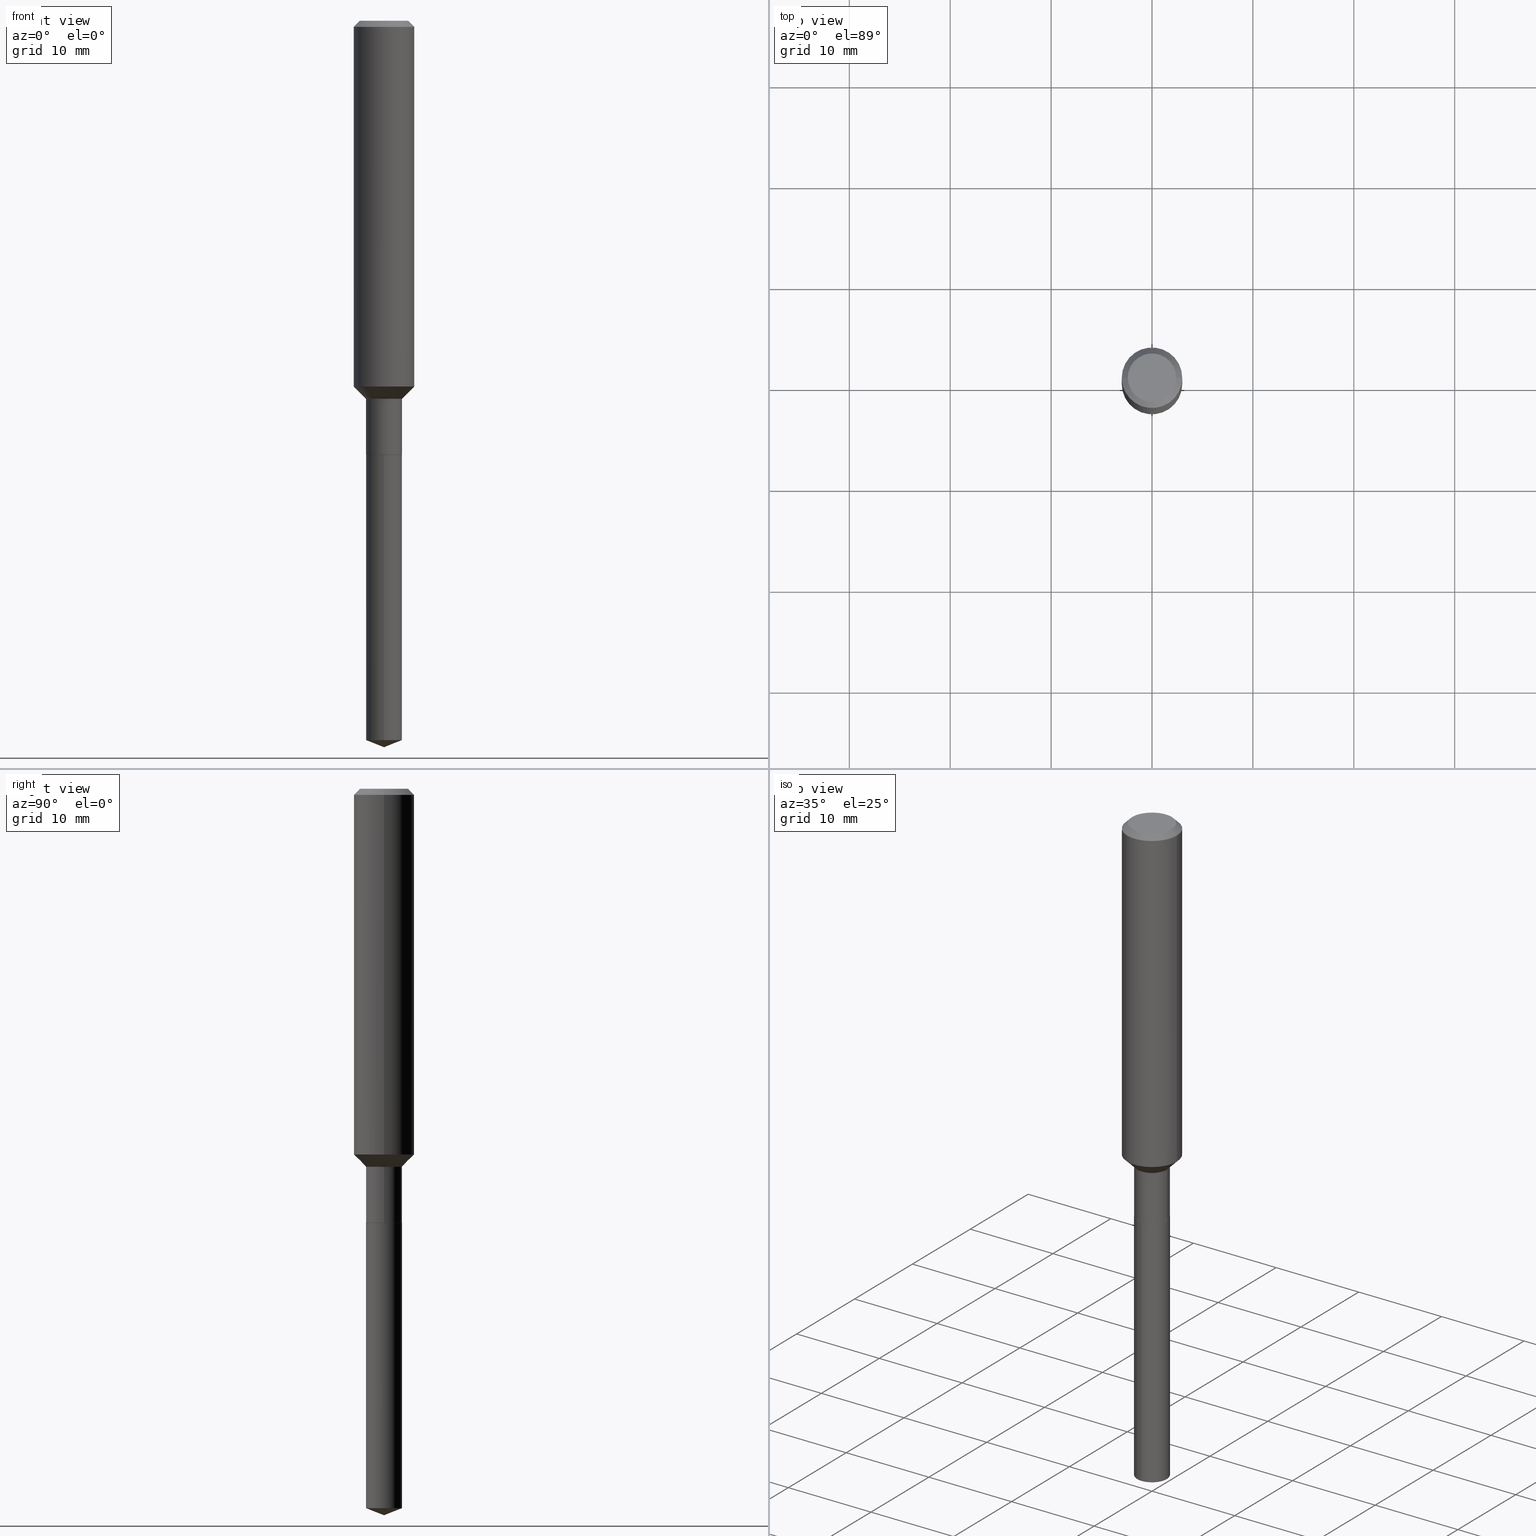
[diagram: canonical four-view strip — front | top / right | iso, engineering-drawing reading convention]
A machine part, canonical four-view strip (front | top / right | iso — engineering-drawing reading convention). The complete STEP part file that produces these views, byte-faithful:
ISO-10303-21;
HEADER;
FILE_DESCRIPTION (( 'STEP AP203' ),
    '1' );
FILE_NAME ('56474.STEP',
    '2024-04-24T18:12:00',
    ( '' ),
    ( '' ),
    'SwSTEP 2.0',
    'SolidWorks 2023',
    '' );
FILE_SCHEMA (( 'CONFIG_CONTROL_DESIGN' ));
ENDSEC;

DATA;
#1 = ORIENTED_EDGE ( 'NONE', *, *, #483, .T. ) ;
#2 = FACE_OUTER_BOUND ( 'NONE', #259, .T. ) ;
#3 = VERTEX_POINT ( 'NONE', #260 ) ;
#4 = DIRECTION ( 'NONE',  ( 1.000000000000000000, -6.982962677686266711E-15, 4.876176775795935232E-29 ) ) ;
#5 = AXIS2_PLACEMENT_3D ( 'NONE', #252, #402, #288 ) ;
#6 = EDGE_CURVE ( 'NONE', #32, #282, #364, .T. ) ;
#7 = PERSON_AND_ORGANIZATION ( #243, #291 ) ;
#8 = LINE ( 'NONE', #341, #345 ) ;
#9 = DATE_AND_TIME ( #348, #39 ) ;
#10 = APPROVAL ( #164, 'UNSPECIFIED' ) ;
#11 = CARTESIAN_POINT ( 'NONE',  ( 3.606821942242457808E-29, -5.149585826659755542E-15, -1.474899999999999878 ) ) ;
#12 = PERSON_AND_ORGANIZATION_ROLE ( 'classification_officer' ) ;
#13 = LINE ( 'NONE', #464, #308 ) ;
#14 = APPROVAL_PERSON_ORGANIZATION ( #239, #10, #419 ) ;
#15 = CIRCLE ( 'NONE', #211, 0.09447999999999998066 ) ;
#16 = DIRECTION ( 'NONE',  ( -2.445468806185136877E-29, 3.491481338843145188E-15, 1.000000000000000000 ) ) ;
#17 = FACE_OUTER_BOUND ( 'NONE', #303, .T. ) ;
#18 = ORIENTED_EDGE ( 'NONE', *, *, #66, .F. ) ;
#19 = UNCERTAINTY_MEASURE_WITH_UNIT (LENGTH_MEASURE( 1.000000000000000082E-05 ), #327, 'distance_accuracy_value', 'NONE');
#20 = CARTESIAN_POINT ( 'NONE',  ( 0.09447999999999998066, -7.704367267948738690E-16, -2.700101262759583929E-17 ) ) ;
#21 = ORIENTED_EDGE ( 'NONE', *, *, #84, .T. ) ;
#22 = VECTOR ( 'NONE', #85, 39.37007874015748143 ) ;
#23 = DIRECTION ( 'NONE',  ( 0.7071067811866199593, -2.468850131083015945E-15, 0.7071067811864750752 ) ) ;
#24 = LINE ( 'NONE', #321, #53 ) ;
#25 = CC_DESIGN_PERSON_AND_ORGANIZATION_ASSIGNMENT ( #201, #12, ( #270 ) ) ;
#26 = DIRECTION ( 'NONE',  ( -6.982962677686265133E-15, -1.000000000000000000, 3.885985766236505386E-15 ) ) ;
#27 = ORIENTED_EDGE ( 'NONE', *, *, #369, .F. ) ;
#28 = APPLICATION_PROTOCOL_DEFINITION ( 'international standard', 'config_control_design', 1994, #480 ) ;
#29 = DIRECTION ( 'NONE',  ( -2.445468806185136597E-29, 3.491481338843145583E-15, 1.000000000000000000 ) ) ;
#30 = DIRECTION ( 'NONE',  ( 0.000000000000000000, 0.000000000000000000, 1.000000000000000000 ) ) ;
#31 = ADVANCED_FACE ( 'NONE', ( #447 ), #134, .T. ) ;
#32 = VERTEX_POINT ( 'NONE', #150 ) ;
#33 = ORIENTED_EDGE ( 'NONE', *, *, #483, .F. ) ;
#34 =( LENGTH_UNIT ( ) NAMED_UNIT ( * ) SI_UNIT ( $, .METRE. ) );
#35 = EDGE_LOOP ( 'NONE', ( #233, #292, #333, #33 ) ) ;
#36 = ADVANCED_FACE ( 'NONE', ( #445 ), #444, .T. ) ;
#37 = DIRECTION ( 'NONE',  ( -2.445468806185136597E-29, 3.491481338843145583E-15, 1.000000000000000000 ) ) ;
#38 = VERTEX_POINT ( 'NONE', #411 ) ;
#39 = LOCAL_TIME ( 14, 12, 0.000000000000000000, #350 ) ;
#40 = DIRECTION ( 'NONE',  ( 1.000000000000000000, -6.982962677686266711E-15, 4.876176775795936353E-29 ) ) ;
#41 = ORIENTED_EDGE ( 'NONE', *, *, #488, .T. ) ;
#42 = DIRECTION ( 'NONE',  ( -2.445468806185136597E-29, 3.491481338843145583E-15, 1.000000000000000000 ) ) ;
#43 = EDGE_CURVE ( 'NONE', #142, #373, #158, .T. ) ;
#44 = PERSON_AND_ORGANIZATION ( #243, #291 ) ;
#45 = DIRECTION ( 'NONE',  ( -0.7071067811866199593, 7.493145998870616062E-15, 0.7071067811864750752 ) ) ;
#46 = CIRCLE ( 'NONE', #106, 0.1181000000000001632 ) ;
#47 = AXIS2_PLACEMENT_3D ( 'NONE', #405, #72, #147 ) ;
#48 = DIRECTION ( 'NONE',  ( -6.982962677686266711E-15, -1.000000000000000000, 3.885985766236505386E-15 ) ) ;
#49 = CC_DESIGN_PERSON_AND_ORGANIZATION_ASSIGNMENT ( #195, #50, ( #251 ) ) ;
#50 = PERSON_AND_ORGANIZATION_ROLE ( 'creator' ) ;
#51 = CARTESIAN_POINT ( 'NONE',  ( -4.909022762413031377E-16, -0.07030000000000589944, -1.692899999999999627 ) ) ;
#52 = DIRECTION ( 'NONE',  ( 6.611014441532066589E-15, 0.9304175679820272382, 0.3665012267242905297 ) ) ;
#53 = VECTOR ( 'NONE', #23, 39.37007874015748143 ) ;
#54 =( GEOMETRIC_REPRESENTATION_CONTEXT ( 3 ) GLOBAL_UNCERTAINTY_ASSIGNED_CONTEXT ( ( #19 ) ) GLOBAL_UNIT_ASSIGNED_CONTEXT ( ( #327, #112, #183 ) ) REPRESENTATION_CONTEXT ( 'NONE', 'WORKASPACE' ) );
#55 = DIRECTION ( 'NONE',  ( 1.000000000000000000, -6.982962677686265922E-15, 4.876176775795935793E-29 ) ) ;
#56 = VERTEX_POINT ( 'NONE', #448 ) ;
#57 = DIRECTION ( 'NONE',  ( -2.445468806185136597E-29, 3.491481338843145583E-15, 1.000000000000000000 ) ) ;
#58 = ADVANCED_FACE ( 'NONE', ( #109 ), #381, .T. ) ;
#59 = ORIENTED_EDGE ( 'NONE', *, *, #383, .T. ) ;
#60 = LINE ( 'NONE', #392, #92 ) ;
#61 = DIRECTION ( 'NONE',  ( 1.000000000000000000, -6.982962677686267499E-15, 4.875432709231658792E-29 ) ) ;
#62 = DIRECTION ( 'NONE',  ( 0.7071067811865459074, -7.319954787623249734E-15, -0.7071067811865491270 ) ) ;
#63 = CARTESIAN_POINT ( 'NONE',  ( 0.000000000000000000, 0.000000000000000000, 0.000000000000000000 ) ) ;
#64 = EDGE_LOOP ( 'NONE', ( #339, #1 ) ) ;
#65 = ORIENTED_EDGE ( 'NONE', *, *, #451, .T. ) ;
#66 = EDGE_CURVE ( 'NONE', #56, #373, #346, .T. ) ;
#67 = CLOSED_SHELL ( 'NONE', ( #219, #36, #389, #170, #131 ) ) ;
#68 = VECTOR ( 'NONE', #88, 39.37007874015748143 ) ;
#69 = LINE ( 'NONE', #302, #404 ) ;
#70 = AXIS2_PLACEMENT_3D ( 'NONE', #388, #193, #48 ) ;
#71 = ORIENTED_EDGE ( 'NONE', *, *, #238, .T. ) ;
#72 = DIRECTION ( 'NONE',  ( -2.445468806185136597E-29, 3.491481338843145583E-15, 1.000000000000000000 ) ) ;
#73 = EDGE_LOOP ( 'NONE', ( #481, #41, #263, #398 ) ) ;
#74 = DIRECTION ( 'NONE',  ( -2.436575684604276326E-29, 3.504216795111983695E-15, 1.000000000000000000 ) ) ;
#75 = ORIENTED_EDGE ( 'NONE', *, *, #446, .T. ) ;
#76 = DATE_AND_TIME ( #314, #289 ) ;
#77 = ORIENTED_EDGE ( 'NONE', *, *, #322, .F. ) ;
#78 = VECTOR ( 'NONE', #16, 39.37007874015748143 ) ;
#79 = DIRECTION ( 'NONE',  ( -6.982962677686266711E-15, -1.000000000000000000, 3.885985766236505386E-15 ) ) ;
#80 = COORDINATED_UNIVERSAL_TIME_OFFSET ( 5, 0, .BEHIND. ) ;
#81 = CARTESIAN_POINT ( 'NONE',  ( 0.07030000000000000138, -6.399885294099483730E-15, -1.692399999999999904 ) ) ;
#82 = EDGE_LOOP ( 'NONE', ( #246, #75, #316, #378 ) ) ;
#83 = PRODUCT_RELATED_PRODUCT_CATEGORY ( 'detail', '', ( #155 ) ) ;
#84 = EDGE_CURVE ( 'NONE', #282, #455, #241, .T. ) ;
#85 = DIRECTION ( 'NONE',  ( -2.445468806185136877E-29, 3.491481338843145188E-15, 1.000000000000000000 ) ) ;
#86 = CONICAL_SURFACE ( 'NONE', #317, 0.07029999999999997362, 0.7853981633974507215 ) ;
#87 = PERSON_AND_ORGANIZATION_ROLE ( 'design_owner' ) ;
#88 = DIRECTION ( 'NONE',  ( 0.7071067811865492381, -2.468850131082275204E-15, 0.7071067811865457964 ) ) ;
#89 = CARTESIAN_POINT ( 'NONE',  ( 0.000000000000000000, 0.000000000000000000, 0.000000000000000000 ) ) ;
#90 = DIRECTION ( 'NONE',  ( -2.436575684604276326E-29, 3.504216795111983695E-15, 1.000000000000000000 ) ) ;
#91 = CLOSED_SHELL ( 'NONE', ( #31, #440, #212, #111, #58, #285, #461, #397, #180, #296, #286, #225 ) ) ;
#92 = VECTOR ( 'NONE', #52, 39.37007874015748143 ) ;
#93 = CARTESIAN_POINT ( 'NONE',  ( 6.603013411620882309E-46, -9.427353171913646324E-32, -2.700101262760083747E-17 ) ) ;
#94 = EDGE_CURVE ( 'NONE', #427, #32, #8, .T. ) ;
#95 = CARTESIAN_POINT ( 'NONE',  ( 4.139934141990817236E-29, -5.910728758527560286E-15, -1.692899999999999849 ) ) ;
#96 = CARTESIAN_POINT ( 'NONE',  ( 4.139934141990817236E-29, -5.910728758527560286E-15, -1.692899999999999849 ) ) ;
#97 = LOCAL_TIME ( 14, 12, 0.000000000000000000, #458 ) ;
#98 = AXIS2_PLACEMENT_3D ( 'NONE', #197, #343, #306 ) ;
#99 = CC_DESIGN_SECURITY_CLASSIFICATION ( #270, ( #205 ) ) ;
#100 = CARTESIAN_POINT ( 'NONE',  ( 0.07029999999999997362, -5.640488102901099701E-15, -1.474899999999999878 ) ) ;
#101 = CC_DESIGN_PERSON_AND_ORGANIZATION_ASSIGNMENT ( #433, #311, ( #205 ) ) ;
#102 = CARTESIAN_POINT ( 'NONE',  ( -8.900640395811996230E-28, 1.280497980726341905E-13, 36.53547874015747965 ) ) ;
#103 = DIMENSIONAL_EXPONENTS ( 1.000000000000000000, 0.000000000000000000, 0.000000000000000000, 0.000000000000000000, 0.000000000000000000, 0.000000000000000000, 0.000000000000000000 ) ;
#104 = LENGTH_MEASURE_WITH_UNIT ( LENGTH_MEASURE( 0.02539999999999999897 ), #34 );
#105 = DIRECTION ( 'NONE',  ( -6.982962677686266711E-15, -1.000000000000000000, 0.000000000000000000 ) ) ;
#106 = AXIS2_PLACEMENT_3D ( 'NONE', #442, #130, #254 ) ;
#107 = DIRECTION ( 'NONE',  ( -2.445468806185136597E-29, 3.491481338843145583E-15, 1.000000000000000000 ) ) ;
#108 = EDGE_CURVE ( 'NONE', #56, #393, #240, .T. ) ;
#109 = FACE_OUTER_BOUND ( 'NONE', #113, .T. ) ;
#110 = EDGE_LOOP ( 'NONE', ( #366, #265, #490, #305 ) ) ;
#111 = ADVANCED_FACE ( 'NONE', ( #310 ), #479, .T. ) ;
#112 =( NAMED_UNIT ( * ) PLANE_ANGLE_UNIT ( ) SI_UNIT ( $, .RADIAN. ) );
#113 = EDGE_LOOP ( 'NONE', ( #278, #65, #133, #184 ) ) ;
#114 = APPROVAL_ROLE ( '' ) ;
#115 = VERTEX_POINT ( 'NONE', #315 ) ;
#116 = DATE_TIME_ROLE ( 'creation_date' ) ;
#117 = CARTESIAN_POINT ( 'NONE',  ( 4.995115432393917570E-16, 0.07029999999999410332, -1.692900000000000071 ) ) ;
#118 = AXIS2_PLACEMENT_3D ( 'NONE', #436, #377, #40 ) ;
#119 = AXIS2_PLACEMENT_3D ( 'NONE', #304, #258, #224 ) ;
#120 = CARTESIAN_POINT ( 'NONE',  ( 4.139934141990817236E-29, -5.910728758527560286E-15, -1.692899999999999849 ) ) ;
#121 = EDGE_CURVE ( 'NONE', #418, #115, #273, .T. ) ;
#122 = APPROVAL_STATUS ( 'not_yet_approved' ) ;
#123 = LINE ( 'NONE', #275, #231 ) ;
#124 = ORIENTED_EDGE ( 'NONE', *, *, #307, .F. ) ;
#125 = DIRECTION ( 'NONE',  ( -0.7071067811865459074, 2.468850131082240100E-15, -0.7071067811865491270 ) ) ;
#126 = ORIENTED_EDGE ( 'NONE', *, *, #146, .F. ) ;
#127 = AXIS2_PLACEMENT_3D ( 'NONE', #368, #29, #179 ) ;
#128 = CC_DESIGN_APPROVAL ( #473, ( #205 ) ) ;
#129 = CARTESIAN_POINT ( 'NONE',  ( 0.1181000000000000799, -8.246878922347486570E-16, 5.758764772215004644E-30 ) ) ;
#130 = DIRECTION ( 'NONE',  ( -2.445468806185136597E-29, 3.491481338843145583E-15, 1.000000000000000000 ) ) ;
#131 = ADVANCED_FACE ( 'NONE', ( #434 ), #426, .F. ) ;
#132 = FACE_OUTER_BOUND ( 'NONE', #110, .T. ) ;
#133 = ORIENTED_EDGE ( 'NONE', *, *, #401, .F. ) ;
#134 = CONICAL_SURFACE ( 'NONE', #365, 0.06980000000000000093, 0.7853981633975507526 ) ;
#135 = AXIS2_PLACEMENT_3D ( 'NONE', #320, #358, #203 ) ;
#136 = ORIENTED_EDGE ( 'NONE', *, *, #94, .F. ) ;
#137 = CARTESIAN_POINT ( 'NONE',  ( 6.603013411620882309E-46, -9.427353171913646324E-32, -2.700101262760083747E-17 ) ) ;
#138 = APPROVAL ( #122, 'UNSPECIFIED' ) ;
#139 = DIRECTION ( 'NONE',  ( 1.000000000000000000, -6.982962677686266711E-15, 0.000000000000000000 ) ) ;
#140 = DIRECTION ( 'NONE',  ( -2.445468806185136597E-29, 3.491481338843145583E-15, 1.000000000000000000 ) ) ;
#141 = ORIENTED_EDGE ( 'NONE', *, *, #369, .T. ) ;
#142 = VERTEX_POINT ( 'NONE', #81 ) ;
#143 = EDGE_CURVE ( 'NONE', #3, #38, #123, .T. ) ;
#144 = DIRECTION ( 'NONE',  ( 1.000000000000000000, -6.982962677686268288E-15, 0.000000000000000000 ) ) ;
#145 = ORIENTED_EDGE ( 'NONE', *, *, #383, .F. ) ;
#146 = EDGE_CURVE ( 'NONE', #115, #215, #429, .T. ) ;
#147 = DIRECTION ( 'NONE',  ( 1.000000000000000000, -6.982962677686266711E-15, 4.876176775795936353E-29 ) ) ;
#148 = ORIENTED_EDGE ( 'NONE', *, *, #94, .T. ) ;
#149 = ORIENTED_EDGE ( 'NONE', *, *, #6, .F. ) ;
#150 = CARTESIAN_POINT ( 'NONE',  ( -4.909022762412758234E-16, -0.07030000000000981297, -2.806908093564269624 ) ) ;
#151 = EDGE_LOOP ( 'NONE', ( #182, #59, #189, #250 ) ) ;
#152 = FACE_OUTER_BOUND ( 'NONE', #82, .T. ) ;
#153 = ORIENTED_EDGE ( 'NONE', *, *, #488, .F. ) ;
#154 = CARTESIAN_POINT ( 'NONE',  ( 3.606821942242457808E-29, -5.149585826659755542E-15, -1.474899999999999878 ) ) ;
#155 = PRODUCT ( '56474', '56474', '', ( #297 ) ) ;
#156 = AXIS2_PLACEMENT_3D ( 'NONE', #371, #295, #105 ) ;
#157 = DIRECTION ( 'NONE',  ( -6.497071151882120625E-15, -0.9304175679820246847, 0.3665012267242971356 ) ) ;
#158 = CIRCLE ( 'NONE', #127, 0.07030000000000000138 ) ;
#159 = CC_DESIGN_DATE_AND_TIME_ASSIGNMENT ( #454, #116, ( #251 ) ) ;
#160 = SECURITY_CLASSIFICATION_LEVEL ( 'unclassified' ) ;
#161 = DIRECTION ( 'NONE',  ( 1.000000000000000000, -6.982962677686271444E-15, 0.000000000000000000 ) ) ;
#162 = APPROVAL_DATE_TIME ( #9, #473 ) ;
#163 = DIRECTION ( 'NONE',  ( 1.000000000000000000, -6.982962677686268288E-15, 0.000000000000000000 ) ) ;
#164 = APPROVAL_STATUS ( 'not_yet_approved' ) ;
#165 = FACE_OUTER_BOUND ( 'NONE', #363, .T. ) ;
#166 = PLANE ( 'NONE',  #135 ) ;
#167 = ORIENTED_EDGE ( 'NONE', *, *, #294, .T. ) ;
#168 = DIRECTION ( 'NONE',  ( -6.982962677686265133E-15, -1.000000000000000000, 3.498627837350004222E-15 ) ) ;
#169 = FACE_OUTER_BOUND ( 'NONE', #151, .T. ) ;
#170 = ADVANCED_FACE ( 'NONE', ( #245 ), #236, .T. ) ;
#171 = ADVANCED_BREP_SHAPE_REPRESENTATION ( '56474', ( #394, #242, #422 ), #54 ) ;
#172 = AXIS2_PLACEMENT_3D ( 'NONE', #96, #396, #175 ) ;
#173 = AXIS2_PLACEMENT_3D ( 'NONE', #478, #140, #280 ) ;
#174 = CARTESIAN_POINT ( 'NONE',  ( 4.139934141990817236E-29, -5.910728758527560286E-15, -1.692899999999999849 ) ) ;
#175 = DIRECTION ( 'NONE',  ( 1.000000000000000000, -6.982962677686271444E-15, 0.000000000000000000 ) ) ;
#176 = CARTESIAN_POINT ( 'NONE',  ( 4.139934141990817236E-29, -5.910728758527560286E-15, -1.692899999999999849 ) ) ;
#177 = AXIS2_PLACEMENT_3D ( 'NONE', #284, #469, #139 ) ;
#178 = CARTESIAN_POINT ( 'NONE',  ( 4.995115432394192686E-16, 0.07029999999999410332, -1.692900000000000071 ) ) ;
#179 = DIRECTION ( 'NONE',  ( 1.000000000000000000, -6.982962677686265133E-15, 0.000000000000000000 ) ) ;
#180 = ADVANCED_FACE ( 'NONE', ( #200 ), #300, .T. ) ;
#181 = DIRECTION ( 'NONE',  ( 1.000000000000000000, 0.000000000000000000, 0.000000000000000000 ) ) ;
#182 = ORIENTED_EDGE ( 'NONE', *, *, #451, .F. ) ;
#183 =( NAMED_UNIT ( * ) SI_UNIT ( $, .STERADIAN. ) SOLID_ANGLE_UNIT ( ) );
#184 = ORIENTED_EDGE ( 'NONE', *, *, #199, .F. ) ;
#185 = AXIS2_PLACEMENT_3D ( 'NONE', #489, #484, #144 ) ;
#186 = VECTOR ( 'NONE', #45, 39.37007874015748143 ) ;
#187 = CARTESIAN_POINT ( 'NONE',  ( -0.07029999999999997362, -4.650074283420404904E-15, -1.474899999999999878 ) ) ;
#188 = CIRCLE ( 'NONE', #257, 0.07030000000000000138 ) ;
#189 = ORIENTED_EDGE ( 'NONE', *, *, #199, .T. ) ;
#190 = CARTESIAN_POINT ( 'NONE',  ( 0.1180999999999999966, -9.071566814582237199E-16, -0.02362000000000014435 ) ) ;
#191 = VERTEX_POINT ( 'NONE', #468 ) ;
#192 = DATE_TIME_ROLE ( 'classification_date' ) ;
#193 = DIRECTION ( 'NONE',  ( -2.436575684604276326E-29, 3.504216795111983695E-15, 1.000000000000000000 ) ) ;
#194 = EDGE_CURVE ( 'NONE', #487, #418, #324, .T. ) ;
#195 = PERSON_AND_ORGANIZATION ( #243, #291 ) ;
#196 = CIRCLE ( 'NONE', #177, 0.1180999999999999966 ) ;
#197 = CARTESIAN_POINT ( 'NONE',  ( 4.139934141990817236E-29, -5.910728758527560286E-15, -1.692899999999999849 ) ) ;
#198 = APPROVAL_PERSON_ORGANIZATION ( #274, #473, #276 ) ;
#199 = EDGE_CURVE ( 'NONE', #142, #418, #13, .T. ) ;
#200 = FACE_OUTER_BOUND ( 'NONE', #465, .T. ) ;
#201 = PERSON_AND_ORGANIZATION ( #243, #291 ) ;
#202 = DIRECTION ( 'NONE',  ( 2.445468806185136597E-29, -3.491481338843145583E-15, -1.000000000000000000 ) ) ;
#203 = DIRECTION ( 'NONE',  ( -1.000000000000000000, 6.982962677686265922E-15, -4.876176775795935793E-29 ) ) ;
#204 = AXIS2_PLACEMENT_3D ( 'NONE', #441, #57, #400 ) ;
#205 = PRODUCT_DEFINITION_FORMATION_WITH_SPECIFIED_SOURCE ( 'ANY', '', #155, .NOT_KNOWN. ) ;
#206 = CARTESIAN_POINT ( 'NONE',  ( 4.995115432394188741E-16, 0.07029999999999017590, -2.806908093564269624 ) ) ;
#207 = CC_DESIGN_PERSON_AND_ORGANIZATION_ASSIGNMENT ( #44, #423, ( #205 ) ) ;
#208 = DIRECTION ( 'NONE',  ( 1.000000000000000000, -6.982962677686270655E-15, 0.000000000000000000 ) ) ;
#209 = VERTEX_POINT ( 'NONE', #51 ) ;
#210 = CARTESIAN_POINT ( 'NONE',  ( 4.139934141990817236E-29, -5.910728758527560286E-15, -1.692899999999999849 ) ) ;
#211 = AXIS2_PLACEMENT_3D ( 'NONE', #93, #357, #61 ) ;
#212 = ADVANCED_FACE ( 'NONE', ( #165 ), #318, .T. ) ;
#213 = CYLINDRICAL_SURFACE ( 'NONE', #204, 0.07029999999999998750 ) ;
#214 = CARTESIAN_POINT ( 'NONE',  ( 5.776197320209328408E-31, -8.246878922347560526E-17, -0.02362000000000014435 ) ) ;
#215 = VERTEX_POINT ( 'NONE', #190 ) ;
#216 = ORIENTED_EDGE ( 'NONE', *, *, #66, .T. ) ;
#217 = LINE ( 'NONE', #228, #387 ) ;
#218 = ORIENTED_EDGE ( 'NONE', *, *, #272, .F. ) ;
#219 = ADVANCED_FACE ( 'NONE', ( #2 ), #456, .T. ) ;
#220 = DIRECTION ( 'NONE',  ( -6.982962677686265133E-15, -1.000000000000000000, 3.498627837350004222E-15 ) ) ;
#221 = VECTOR ( 'NONE', #459, 39.37007874015748143 ) ;
#222 = DIRECTION ( 'NONE',  ( -2.445468806185136877E-29, 3.491481338843145188E-15, 1.000000000000000000 ) ) ;
#223 = DIRECTION ( 'NONE',  ( 1.000000000000000000, -6.982962677686271444E-15, 0.000000000000000000 ) ) ;
#224 = DIRECTION ( 'NONE',  ( -1.000000000000000000, 6.982962677686266711E-15, 0.000000000000000000 ) ) ;
#225 = ADVANCED_FACE ( 'NONE', ( #287 ), #344, .T. ) ;
#226 = ORIENTED_EDGE ( 'NONE', *, *, #235, .T. ) ;
#227 = ORIENTED_EDGE ( 'NONE', *, *, #307, .T. ) ;
#228 = CARTESIAN_POINT ( 'NONE',  ( -0.07029999999999998750, 4.995115432393503418E-16, -3.458011368449198169E-30 ) ) ;
#229 = EDGE_LOOP ( 'NONE', ( #136, #336, #149 ) ) ;
#230 = CC_DESIGN_APPROVAL ( #138, ( #251 ) ) ;
#231 = VECTOR ( 'NONE', #125, 39.37007874015748143 ) ;
#232 = CALENDAR_DATE ( 2024, 24, 4 ) ;
#233 = ORIENTED_EDGE ( 'NONE', *, *, #84, .F. ) ;
#234 = APPLICATION_PROTOCOL_DEFINITION ( 'international standard', 'config_control_design', 1994, #379 ) ;
#235 = EDGE_CURVE ( 'NONE', #248, #3, #15, .T. ) ;
#236 = CYLINDRICAL_SURFACE ( 'NONE', #70, 0.07030000000000000138 ) ;
#237 = CARTESIAN_POINT ( 'NONE',  ( 0.07029999999999997362, -5.640488102901099701E-15, -1.474899999999999878 ) ) ;
#238 = EDGE_CURVE ( 'NONE', #191, #38, #281, .T. ) ;
#239 = PERSON_AND_ORGANIZATION ( #243, #291 ) ;
#240 = CIRCLE ( 'NONE', #466, 0.06980000000000000093 ) ;
#241 = LINE ( 'NONE', #117, #221 ) ;
#242 = MANIFOLD_SOLID_BREP ( 'Body-Move/Copy2[2]', #91 ) ;
#243 = PERSON ( 'UNSPECIFIED', 'UNSPECIFIED', 'UNSPECIFIED', ('UNSPECIFIED'), ('UNSPECIFIED'), ('UNSPECIFIED') ) ;
#244 = CALENDAR_DATE ( 2024, 24, 4 ) ;
#245 = FACE_OUTER_BOUND ( 'NONE', #35, .T. ) ;
#246 = ORIENTED_EDGE ( 'NONE', *, *, #235, .F. ) ;
#247 = DIRECTION ( 'NONE',  ( 1.000000000000000000, -6.982962677686271444E-15, 0.000000000000000000 ) ) ;
#248 = VERTEX_POINT ( 'NONE', #20 ) ;
#249 = DIRECTION ( 'NONE',  ( -2.445468806185136597E-29, 3.491481338843145583E-15, 1.000000000000000000 ) ) ;
#250 = ORIENTED_EDGE ( 'NONE', *, *, #194, .F. ) ;
#251 = PRODUCT_DEFINITION ( 'UNKNOWN', '', #205, #470 ) ;
#252 = CARTESIAN_POINT ( 'NONE',  ( 6.854299175221882208E-29, -9.814454629886157032E-15, -2.806908093564269624 ) ) ;
#253 = DIRECTION ( 'NONE',  ( -2.436575684604276326E-29, 3.504216795111983695E-15, 1.000000000000000000 ) ) ;
#254 = DIRECTION ( 'NONE',  ( 1.000000000000000000, -6.982962677686270655E-15, 0.000000000000000000 ) ) ;
#255 = CONICAL_SURFACE ( 'NONE', #432, 99.94676754583997536, 1.195550537616119513 ) ;
#256 = AXIS2_PLACEMENT_3D ( 'NONE', #89, #277, #4 ) ;
#257 = AXIS2_PLACEMENT_3D ( 'NONE', #362, #293, #26 ) ;
#258 = DIRECTION ( 'NONE',  ( 2.445468806185136597E-29, -3.491481338843145583E-15, -1.000000000000000000 ) ) ;
#259 = EDGE_LOOP ( 'NONE', ( #266, #21, #406, #268 ) ) ;
#260 = CARTESIAN_POINT ( 'NONE',  ( -0.09447999999999998066, 7.009847083995354710E-16, -2.700101262760559836E-17 ) ) ;
#261 = AXIS2_PLACEMENT_3D ( 'NONE', #95, #253, #476 ) ;
#262 = EDGE_CURVE ( 'NONE', #282, #32, #352, .T. ) ;
#263 = ORIENTED_EDGE ( 'NONE', *, *, #294, .F. ) ;
#264 = CARTESIAN_POINT ( 'NONE',  ( 0.1180999999999999966, -8.926936027602933910E-16, -0.02362000000000014435 ) ) ;
#265 = ORIENTED_EDGE ( 'NONE', *, *, #356, .T. ) ;
#266 = ORIENTED_EDGE ( 'NONE', *, *, #6, .T. ) ;
#267 = APPROVAL_STATUS ( 'not_yet_approved' ) ;
#268 = ORIENTED_EDGE ( 'NONE', *, *, #410, .F. ) ;
#269 = AXIS2_PLACEMENT_3D ( 'NONE', #360, #325, #208 ) ;
#270 = SECURITY_CLASSIFICATION ( '', '', #160 ) ;
#271 = CARTESIAN_POINT ( 'NONE',  ( 4.139934141990817236E-29, -5.910728758527560286E-15, -1.692899999999999849 ) ) ;
#272 = EDGE_CURVE ( 'NONE', #427, #282, #60, .T. ) ;
#273 = LINE ( 'NONE', #237, #68 ) ;
#274 = PERSON_AND_ORGANIZATION ( #243, #291 ) ;
#275 = CARTESIAN_POINT ( 'NONE',  ( -0.1180999999999999966, 7.422191030112725094E-16, -0.02362000000000014435 ) ) ;
#276 = APPROVAL_ROLE ( '' ) ;
#277 = DIRECTION ( 'NONE',  ( -2.445468806185136597E-29, 3.491481338843145583E-15, 1.000000000000000000 ) ) ;
#278 = ORIENTED_EDGE ( 'NONE', *, *, #43, .T. ) ;
#279 = DIRECTION ( 'NONE',  ( -2.445468806185136597E-29, 3.491481338843145583E-15, 1.000000000000000000 ) ) ;
#280 = DIRECTION ( 'NONE',  ( 1.000000000000000000, -6.982962677686265133E-15, 0.000000000000000000 ) ) ;
#281 = LINE ( 'NONE', #403, #78 ) ;
#282 = VERTEX_POINT ( 'NONE', #206 ) ;
#283 = AXIS2_PLACEMENT_3D ( 'NONE', #210, #323, #55 ) ;
#284 = CARTESIAN_POINT ( 'NONE',  ( 5.776197320209328408E-31, -8.246878922347560526E-17, -0.02362000000000014435 ) ) ;
#285 = ADVANCED_FACE ( 'NONE', ( #169 ), #213, .T. ) ;
#286 = ADVANCED_FACE ( 'NONE', ( #438 ), #475, .F. ) ;
#287 = FACE_OUTER_BOUND ( 'NONE', #430, .T. ) ;
#288 = DIRECTION ( 'NONE',  ( -6.982962677686266711E-15, -1.000000000000000000, 0.000000000000000000 ) ) ;
#289 = LOCAL_TIME ( 14, 12, 0.000000000000000000, #80 ) ;
#290 = AXIS2_PLACEMENT_3D ( 'NONE', #174, #354, #247 ) ;
#291 = ORGANIZATION ( 'UNSPECIFIED', 'UNSPECIFIED', '' ) ;
#292 = ORIENTED_EDGE ( 'NONE', *, *, #262, .T. ) ;
#293 = DIRECTION ( 'NONE',  ( -2.436575684604276326E-29, 3.504216795111983695E-15, 1.000000000000000000 ) ) ;
#294 = EDGE_CURVE ( 'NONE', #115, #191, #421, .T. ) ;
#295 = DIRECTION ( 'NONE',  ( -2.436575684604276326E-29, 3.504216795111983695E-15, 1.000000000000000000 ) ) ;
#296 = ADVANCED_FACE ( 'NONE', ( #443 ), #166, .F. ) ;
#297 = MECHANICAL_CONTEXT ( 'NONE', #480, 'mechanical' ) ;
#298 = ORIENTED_EDGE ( 'NONE', *, *, #43, .F. ) ;
#299 = ORIENTED_EDGE ( 'NONE', *, *, #477, .T. ) ;
#300 = CONICAL_SURFACE ( 'NONE', #457, 0.1180999999999999966, 0.7853981633974460586 ) ;
#301 = APPROVAL_PERSON_ORGANIZATION ( #7, #138, #114 ) ;
#302 = CARTESIAN_POINT ( 'NONE',  ( -4.909022762413032363E-16, -0.07030000000000591331, -1.692899999999999627 ) ) ;
#303 = EDGE_LOOP ( 'NONE', ( #218, #148, #452 ) ) ;
#304 = CARTESIAN_POINT ( 'NONE',  ( 5.776197320209328408E-31, -8.246878922347560526E-17, -0.02362000000000014435 ) ) ;
#305 = ORIENTED_EDGE ( 'NONE', *, *, #477, .F. ) ;
#306 = DIRECTION ( 'NONE',  ( 6.982962677686265922E-15, 1.000000000000000000, -3.504216795111983695E-15 ) ) ;
#307 = EDGE_CURVE ( 'NONE', #393, #142, #24, .T. ) ;
#308 = VECTOR ( 'NONE', #391, 39.37007874015748143 ) ;
#309 = PERSON_AND_ORGANIZATION ( #243, #291 ) ;
#310 = FACE_OUTER_BOUND ( 'NONE', #73, .T. ) ;
#311 = PERSON_AND_ORGANIZATION_ROLE ( 'design_supplier' ) ;
#312 = DIRECTION ( 'NONE',  ( -2.445468806185136597E-29, 3.491481338843145583E-15, 1.000000000000000000 ) ) ;
#313 = EDGE_CURVE ( 'NONE', #3, #248, #395, .T. ) ;
#314 = CALENDAR_DATE ( 2024, 24, 4 ) ;
#315 = CARTESIAN_POINT ( 'NONE',  ( 0.1181000000000001632, -5.807380910897802542E-15, -1.427099999999999813 ) ) ;
#316 = ORIENTED_EDGE ( 'NONE', *, *, #322, .T. ) ;
#317 = AXIS2_PLACEMENT_3D ( 'NONE', #372, #37, #414 ) ;
#318 = CYLINDRICAL_SURFACE ( 'NONE', #118, 0.1181000000000000799 ) ;
#319 = LOCAL_TIME ( 14, 12, 0.000000000000000000, #460 ) ;
#320 = CARTESIAN_POINT ( 'NONE',  ( 3.301506705810441154E-46, -4.713676585956823162E-32, -1.350050631380041873E-17 ) ) ;
#321 = CARTESIAN_POINT ( 'NONE',  ( 0.06980000000000000093, -6.398139553430062226E-15, -1.692899999999999849 ) ) ;
#322 = EDGE_CURVE ( 'NONE', #215, #38, #196, .T. ) ;
#323 = DIRECTION ( 'NONE',  ( -2.438088387897960049E-29, 3.491481338843145188E-15, 1.000000000000000000 ) ) ;
#324 = CIRCLE ( 'NONE', #359, 0.07029999999999997362 ) ;
#325 = DIRECTION ( 'NONE',  ( -2.445468806185136597E-29, 3.491481338843145583E-15, 1.000000000000000000 ) ) ;
#326 = CARTESIAN_POINT ( 'NONE',  ( -0.07030000000000000138, -5.029772879019596525E-15, -1.692399999999999904 ) ) ;
#327 =( CONVERSION_BASED_UNIT ( 'INCH', #104 ) LENGTH_UNIT ( ) NAMED_UNIT ( #103 ) );
#328 = DIRECTION ( 'NONE',  ( -2.445468806185136597E-29, 3.491481338843145583E-15, 1.000000000000000000 ) ) ;
#329 = AXIS2_PLACEMENT_3D ( 'NONE', #154, #312, #462 ) ;
#330 = CONICAL_SURFACE ( 'NONE', #119, 0.1180999999999999966, 0.7853981633974460586 ) ;
#331 = CARTESIAN_POINT ( 'NONE',  ( 6.906717435579281484E-29, -9.933052927424430103E-15, -2.834600000000000009 ) ) ;
#332 = CC_DESIGN_PERSON_AND_ORGANIZATION_ASSIGNMENT ( #309, #87, ( #155 ) ) ;
#333 = ORIENTED_EDGE ( 'NONE', *, *, #410, .T. ) ;
#334 = EDGE_LOOP ( 'NONE', ( #27, #417 ) ) ;
#335 = LINE ( 'NONE', #264, #482 ) ;
#336 = ORIENTED_EDGE ( 'NONE', *, *, #272, .T. ) ;
#337 = AXIS2_PLACEMENT_3D ( 'NONE', #102, #408, #220 ) ;
#338 = LOCAL_TIME ( 14, 12, 0.000000000000000000, #380 ) ;
#339 = ORIENTED_EDGE ( 'NONE', *, *, #347, .T. ) ;
#340 = APPROVAL_DATE_TIME ( #376, #10 ) ;
#341 = CARTESIAN_POINT ( 'NONE',  ( 6.906717435579281484E-29, -9.933052927424430103E-15, -2.834600000000000009 ) ) ;
#342 = ORIENTED_EDGE ( 'NONE', *, *, #121, .T. ) ;
#343 = DIRECTION ( 'NONE',  ( 2.436575684604276046E-29, -3.504216795111983695E-15, -1.000000000000000000 ) ) ;
#344 = CONICAL_SURFACE ( 'NONE', #290, 0.06980000000000000093, 0.7853981633975507526 ) ;
#345 = VECTOR ( 'NONE', #157, 39.37007874015747433 ) ;
#346 = LINE ( 'NONE', #385, #186 ) ;
#347 = EDGE_CURVE ( 'NONE', #209, #455, #474, .T. ) ;
#348 = CALENDAR_DATE ( 2024, 24, 4 ) ;
#349 = DIRECTION ( 'NONE',  ( -1.000000000000000000, 6.982962677686266711E-15, 0.000000000000000000 ) ) ;
#350 = COORDINATED_UNIVERSAL_TIME_OFFSET ( 5, 0, .BEHIND. ) ;
#351 = CARTESIAN_POINT ( 'NONE',  ( 5.776197320209328408E-31, -8.246878922347560526E-17, -0.02362000000000014435 ) ) ;
#352 = CIRCLE ( 'NONE', #5, 0.07030000000000001525 ) ;
#353 = DIRECTION ( 'NONE',  ( 1.000000000000000000, -6.982962677686267499E-15, 4.875432709231658792E-29 ) ) ;
#354 = DIRECTION ( 'NONE',  ( -2.445468806185136597E-29, 3.491481338843145583E-15, 1.000000000000000000 ) ) ;
#355 = ORIENTED_EDGE ( 'NONE', *, *, #356, .F. ) ;
#356 = EDGE_CURVE ( 'NONE', #191, #115, #46, .T. ) ;
#357 = DIRECTION ( 'NONE',  ( -2.445468806185136597E-29, 3.491481338843145583E-15, 1.000000000000000000 ) ) ;
#358 = DIRECTION ( 'NONE',  ( 2.438088387897960049E-29, -3.491481338843145188E-15, -1.000000000000000000 ) ) ;
#359 = AXIS2_PLACEMENT_3D ( 'NONE', #11, #279, #163 ) ;
#360 = CARTESIAN_POINT ( 'NONE',  ( 3.489928533306808296E-29, -4.982693018663052701E-15, -1.427099999999999813 ) ) ;
#361 = DIRECTION ( 'NONE',  ( 1.000000000000000000, -6.982962677686266711E-15, 0.000000000000000000 ) ) ;
#362 = CARTESIAN_POINT ( 'NONE',  ( 4.139934141990817236E-29, -5.910728758527560286E-15, -1.692899999999999849 ) ) ;
#363 = EDGE_LOOP ( 'NONE', ( #167, #71, #77, #126 ) ) ;
#364 = CIRCLE ( 'NONE', #156, 0.07030000000000001525 ) ;
#365 = AXIS2_PLACEMENT_3D ( 'NONE', #176, #328, #223 ) ;
#366 = ORIENTED_EDGE ( 'NONE', *, *, #238, .F. ) ;
#367 = FACE_OUTER_BOUND ( 'NONE', #463, .T. ) ;
#368 = CARTESIAN_POINT ( 'NONE',  ( 4.138711407587725556E-29, -5.908983017858139571E-15, -1.692399999999999904 ) ) ;
#369 = EDGE_CURVE ( 'NONE', #393, #56, #386, .T. ) ;
#370 = CARTESIAN_POINT ( 'NONE',  ( -0.07029999999999997362, -5.029772879019596525E-15, -1.474899999999999878 ) ) ;
#371 = CARTESIAN_POINT ( 'NONE',  ( 6.854299175221882208E-29, -9.814454629886157032E-15, -2.806908093564269624 ) ) ;
#372 = CARTESIAN_POINT ( 'NONE',  ( 3.606821942242457808E-29, -5.149585826659755542E-15, -1.474899999999999878 ) ) ;
#373 = VERTEX_POINT ( 'NONE', #326 ) ;
#374 = CIRCLE ( 'NONE', #399, 0.1180999999999999966 ) ;
#375 = CC_DESIGN_APPROVAL ( #10, ( #270 ) ) ;
#376 = DATE_AND_TIME ( #232, #319 ) ;
#377 = DIRECTION ( 'NONE',  ( -2.445468806185136597E-29, 3.491481338843145583E-15, 1.000000000000000000 ) ) ;
#378 = ORIENTED_EDGE ( 'NONE', *, *, #143, .F. ) ;
#379 = APPLICATION_CONTEXT ( 'configuration controlled 3d designs of mechanical parts and assemblies' ) ;
#380 = COORDINATED_UNIVERSAL_TIME_OFFSET ( 5, 0, .BEHIND. ) ;
#381 = CYLINDRICAL_SURFACE ( 'NONE', #256, 0.07029999999999998750 ) ;
#382 = CALENDAR_DATE ( 2024, 24, 4 ) ;
#383 = EDGE_CURVE ( 'NONE', #373, #142, #449, .T. ) ;
#384 = PRODUCT_DEFINITION_SHAPE ( 'NONE', 'NONE',  #251 ) ;
#385 = CARTESIAN_POINT ( 'NONE',  ( -0.06980000000000000093, -5.414769928967010547E-15, -1.692899999999999849 ) ) ;
#386 = CIRCLE ( 'NONE', #172, 0.06980000000000000093 ) ;
#387 = VECTOR ( 'NONE', #222, 39.37007874015748143 ) ;
#388 = CARTESIAN_POINT ( 'NONE',  ( 4.139934141990817236E-29, -5.910728758527560286E-15, -1.692899999999999849 ) ) ;
#389 = ADVANCED_FACE ( 'NONE', ( #17 ), #255, .T. ) ;
#390 = DATE_AND_TIME ( #244, #97 ) ;
#391 = DIRECTION ( 'NONE',  ( -2.445468806185136877E-29, 3.491481338843145188E-15, 1.000000000000000000 ) ) ;
#392 = CARTESIAN_POINT ( 'NONE',  ( 6.937091798688660061E-29, -9.889933219589396684E-15, -2.834600000000000009 ) ) ;
#393 = VERTEX_POINT ( 'NONE', #471 ) ;
#394 = MANIFOLD_SOLID_BREP ( 'Body-Move/Copy2[1]', #67 ) ;
#395 = CIRCLE ( 'NONE', #413, 0.09447999999999998066 ) ;
#396 = DIRECTION ( 'NONE',  ( -2.445468806185136597E-29, 3.491481338843145583E-15, 1.000000000000000000 ) ) ;
#397 = ADVANCED_FACE ( 'NONE', ( #132 ), #416, .T. ) ;
#398 = ORIENTED_EDGE ( 'NONE', *, *, #121, .F. ) ;
#399 = AXIS2_PLACEMENT_3D ( 'NONE', #214, #107, #361 ) ;
#400 = DIRECTION ( 'NONE',  ( 1.000000000000000000, -6.982962677686266711E-15, 4.876176775795935232E-29 ) ) ;
#401 = EDGE_CURVE ( 'NONE', #418, #487, #467, .T. ) ;
#402 = DIRECTION ( 'NONE',  ( -2.436575684604276326E-29, 3.504216795111983695E-15, 1.000000000000000000 ) ) ;
#403 = CARTESIAN_POINT ( 'NONE',  ( -0.1181000000000000799, 8.391509709326788873E-16, -5.809262341591047988E-30 ) ) ;
#404 = VECTOR ( 'NONE', #74, 39.37007874015748143 ) ;
#405 = CARTESIAN_POINT ( 'NONE',  ( 0.000000000000000000, 0.000000000000000000, 0.000000000000000000 ) ) ;
#406 = ORIENTED_EDGE ( 'NONE', *, *, #347, .F. ) ;
#407 = DIRECTION ( 'NONE',  ( -0.7071067811865492381, 7.493145998870360471E-15, 0.7071067811865457964 ) ) ;
#408 = DIRECTION ( 'NONE',  ( -2.436575684604276326E-29, 3.504216795111983695E-15, 1.000000000000000000 ) ) ;
#409 = ORIENTED_EDGE ( 'NONE', *, *, #194, .T. ) ;
#410 = EDGE_CURVE ( 'NONE', #32, #209, #69, .T. ) ;
#411 = CARTESIAN_POINT ( 'NONE',  ( -0.1180999999999999966, -1.693429933010584502E-15, -0.02362000000000014435 ) ) ;
#412 = ORIENTED_EDGE ( 'NONE', *, *, #313, .F. ) ;
#413 = AXIS2_PLACEMENT_3D ( 'NONE', #137, #249, #353 ) ;
#414 = DIRECTION ( 'NONE',  ( 1.000000000000000000, -6.982962677686268288E-15, 0.000000000000000000 ) ) ;
#415 = ORIENTED_EDGE ( 'NONE', *, *, #446, .F. ) ;
#416 = CYLINDRICAL_SURFACE ( 'NONE', #47, 0.1181000000000000799 ) ;
#417 = ORIENTED_EDGE ( 'NONE', *, *, #108, .F. ) ;
#418 = VERTEX_POINT ( 'NONE', #100 ) ;
#419 = APPROVAL_ROLE ( '' ) ;
#420 = EDGE_LOOP ( 'NONE', ( #141, #216, #298, #124 ) ) ;
#421 = CIRCLE ( 'NONE', #269, 0.1181000000000001632 ) ;
#422 = AXIS2_PLACEMENT_3D ( 'NONE', #63, #30, #181 ) ;
#423 = PERSON_AND_ORGANIZATION_ROLE ( 'creator' ) ;
#424 = DIRECTION ( 'NONE',  ( -2.436575684604276326E-29, 3.504216795111983695E-15, 1.000000000000000000 ) ) ;
#425 = APPROVAL_DATE_TIME ( #390, #138 ) ;
#426 = PLANE ( 'NONE',  #98 ) ;
#427 = VERTEX_POINT ( 'NONE', #331 ) ;
#428 = SHAPE_DEFINITION_REPRESENTATION ( #384, #171 ) ;
#429 = LINE ( 'NONE', #129, #22 ) ;
#430 = EDGE_LOOP ( 'NONE', ( #18, #453, #227, #145 ) ) ;
#431 = AXIS2_PLACEMENT_3D ( 'NONE', #271, #424, #79 ) ;
#432 = AXIS2_PLACEMENT_3D ( 'NONE', #437, #90, #168 ) ;
#433 = PERSON_AND_ORGANIZATION ( #243, #291 ) ;
#434 = FACE_OUTER_BOUND ( 'NONE', #64, .T. ) ;
#435 = ORIENTED_EDGE ( 'NONE', *, *, #313, .T. ) ;
#436 = CARTESIAN_POINT ( 'NONE',  ( 0.000000000000000000, 0.000000000000000000, 0.000000000000000000 ) ) ;
#437 = CARTESIAN_POINT ( 'NONE',  ( -8.900640395811996230E-28, 1.280497980726341905E-13, 36.53547874015747965 ) ) ;
#438 = FACE_OUTER_BOUND ( 'NONE', #334, .T. ) ;
#439 = CC_DESIGN_DATE_AND_TIME_ASSIGNMENT ( #76, #192, ( #270 ) ) ;
#440 = ADVANCED_FACE ( 'NONE', ( #152 ), #330, .T. ) ;
#441 = CARTESIAN_POINT ( 'NONE',  ( 0.000000000000000000, 0.000000000000000000, 0.000000000000000000 ) ) ;
#442 = CARTESIAN_POINT ( 'NONE',  ( 3.489928533306808296E-29, -4.982693018663052701E-15, -1.427099999999999813 ) ) ;
#443 = FACE_OUTER_BOUND ( 'NONE', #472, .T. ) ;
#444 = CONICAL_SURFACE ( 'NONE', #337, 99.94676754583997536, 1.195550537616119513 ) ;
#445 = FACE_OUTER_BOUND ( 'NONE', #229, .T. ) ;
#446 = EDGE_CURVE ( 'NONE', #248, #215, #335, .T. ) ;
#447 = FACE_OUTER_BOUND ( 'NONE', #420, .T. ) ;
#448 = CARTESIAN_POINT ( 'NONE',  ( -0.06980000000000000093, -5.412120701792899346E-15, -1.692899999999999849 ) ) ;
#449 = CIRCLE ( 'NONE', #173, 0.07030000000000000138 ) ;
#450 = VECTOR ( 'NONE', #407, 39.37007874015748143 ) ;
#451 = EDGE_CURVE ( 'NONE', #373, #487, #217, .T. ) ;
#452 = ORIENTED_EDGE ( 'NONE', *, *, #262, .F. ) ;
#453 = ORIENTED_EDGE ( 'NONE', *, *, #108, .T. ) ;
#454 = DATE_AND_TIME ( #382, #338 ) ;
#455 = VERTEX_POINT ( 'NONE', #178 ) ;
#456 = CYLINDRICAL_SURFACE ( 'NONE', #431, 0.07030000000000000138 ) ;
#457 = AXIS2_PLACEMENT_3D ( 'NONE', #351, #202, #349 ) ;
#458 = COORDINATED_UNIVERSAL_TIME_OFFSET ( 5, 0, .BEHIND. ) ;
#459 = DIRECTION ( 'NONE',  ( -2.436575684604276326E-29, 3.504216795111983695E-15, 1.000000000000000000 ) ) ;
#460 = COORDINATED_UNIVERSAL_TIME_OFFSET ( 5, 0, .BEHIND. ) ;
#461 = ADVANCED_FACE ( 'NONE', ( #367 ), #86, .T. ) ;
#462 = DIRECTION ( 'NONE',  ( 1.000000000000000000, -6.982962677686268288E-15, 0.000000000000000000 ) ) ;
#463 = EDGE_LOOP ( 'NONE', ( #153, #409, #342, #355 ) ) ;
#464 = CARTESIAN_POINT ( 'NONE',  ( 0.07029999999999998750, -4.909022762413444543E-16, 3.427952273384541736E-30 ) ) ;
#465 = EDGE_LOOP ( 'NONE', ( #415, #412, #485, #299 ) ) ;
#466 = AXIS2_PLACEMENT_3D ( 'NONE', #120, #42, #161 ) ;
#467 = CIRCLE ( 'NONE', #185, 0.07029999999999997362 ) ;
#468 = CARTESIAN_POINT ( 'NONE',  ( -0.1181000000000001632, -4.143542047730373715E-15, -1.427099999999999813 ) ) ;
#469 = DIRECTION ( 'NONE',  ( -2.445468806185136597E-29, 3.491481338843145583E-15, 1.000000000000000000 ) ) ;
#470 = DESIGN_CONTEXT ( 'detailed design', #379, 'design' ) ;
#471 = CARTESIAN_POINT ( 'NONE',  ( 0.06980000000000000093, -6.398139553430062226E-15, -1.692899999999999849 ) ) ;
#472 = EDGE_LOOP ( 'NONE', ( #435, #226 ) ) ;
#473 = APPROVAL ( #267, 'UNSPECIFIED' ) ;
#474 = CIRCLE ( 'NONE', #261, 0.07030000000000000138 ) ;
#475 = PLANE ( 'NONE',  #283 ) ;
#476 = DIRECTION ( 'NONE',  ( -6.982962677686265133E-15, -1.000000000000000000, 3.885985766236505386E-15 ) ) ;
#477 = EDGE_CURVE ( 'NONE', #38, #215, #374, .T. ) ;
#478 = CARTESIAN_POINT ( 'NONE',  ( 4.138711407587725556E-29, -5.908983017858139571E-15, -1.692399999999999904 ) ) ;
#479 = CONICAL_SURFACE ( 'NONE', #329, 0.07029999999999997362, 0.7853981633974507215 ) ;
#480 = APPLICATION_CONTEXT ( 'configuration controlled 3d designs of mechanical parts and assemblies' ) ;
#481 = ORIENTED_EDGE ( 'NONE', *, *, #401, .T. ) ;
#482 = VECTOR ( 'NONE', #62, 39.37007874015748143 ) ;
#483 = EDGE_CURVE ( 'NONE', #455, #209, #188, .T. ) ;
#484 = DIRECTION ( 'NONE',  ( -2.445468806185136597E-29, 3.491481338843145583E-15, 1.000000000000000000 ) ) ;
#485 = ORIENTED_EDGE ( 'NONE', *, *, #143, .T. ) ;
#486 = LINE ( 'NONE', #187, #450 ) ;
#487 = VERTEX_POINT ( 'NONE', #370 ) ;
#488 = EDGE_CURVE ( 'NONE', #487, #191, #486, .T. ) ;
#489 = CARTESIAN_POINT ( 'NONE',  ( 3.606821942242457808E-29, -5.149585826659755542E-15, -1.474899999999999878 ) ) ;
#490 = ORIENTED_EDGE ( 'NONE', *, *, #146, .T. ) ;
ENDSEC;
END-ISO-10303-21;
